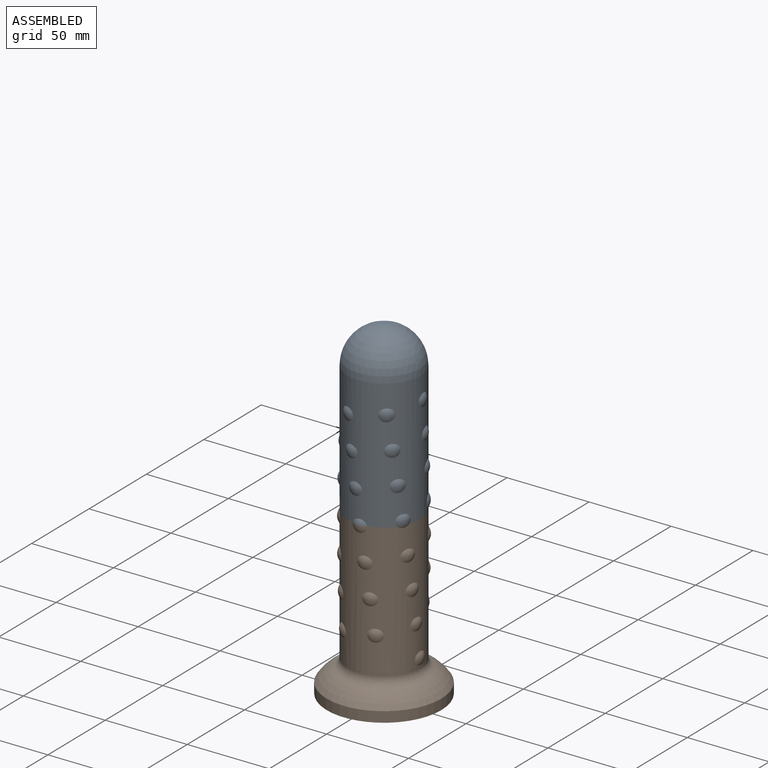
[diagram: assembled view]
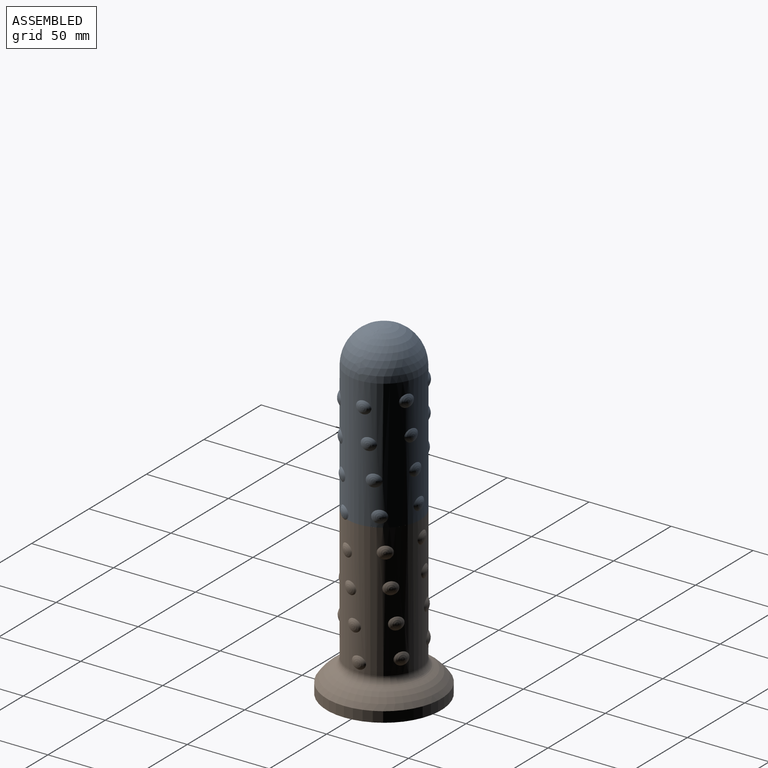
[diagram: assembled view, second angle]
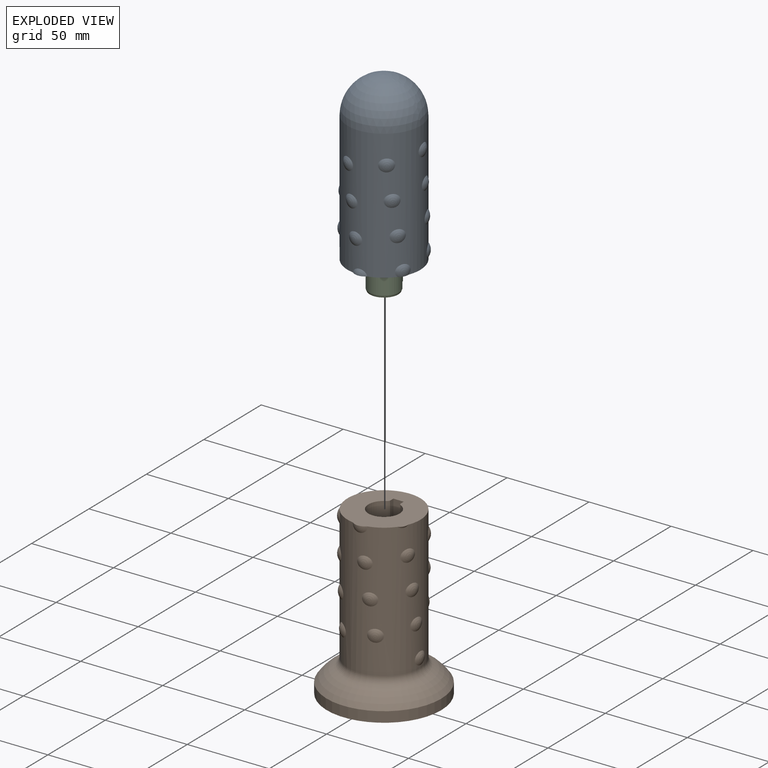
[diagram: exploded view]
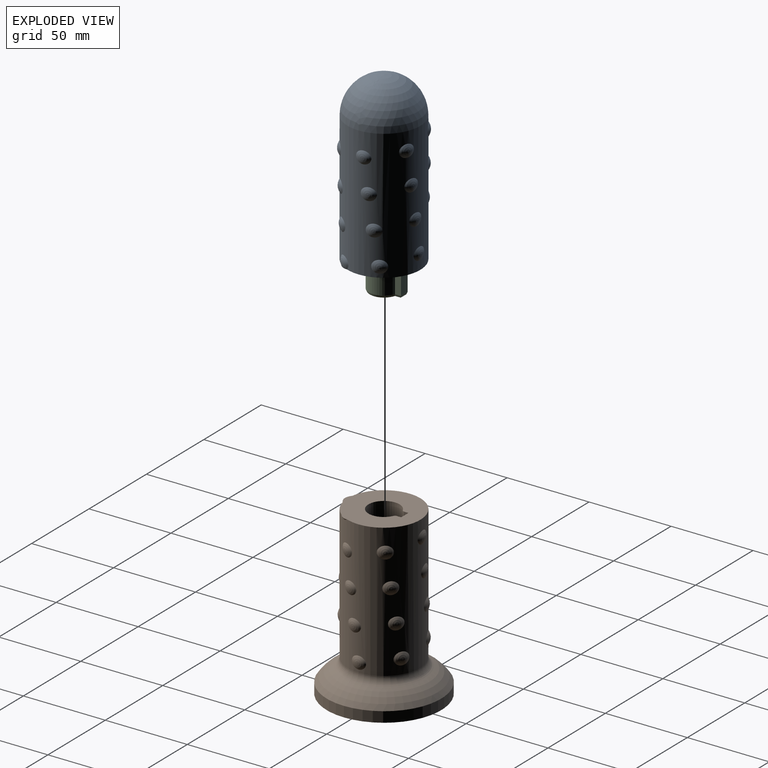
[diagram: exploded view, second angle]
ASSEMBLY  parts=3 mates=2
PART A: 40 faces, bbox 46.8x47x103.2 mm
  f0: sphere r=6.35mm, area 58.6mm2, adj f24
  f1: sphere r=6.35mm, area 58.6mm2, adj f24
  f2: sphere r=6.35mm, area 58.6mm2, adj f24
  f3: sphere r=6.35mm, area 58.6mm2, adj f24
  f4: sphere r=6.35mm, area 58.6mm2, adj f24
  f5: sphere r=6.35mm, area 58.6mm2, adj f24
  f6: sphere r=6.35mm, area 58.6mm2, adj f24
  f7: sphere r=6.35mm, area 58.6mm2, adj f24
  f8: sphere r=6.35mm, area 58.6mm2, adj f24
  f9: sphere r=6.35mm, area 58.6mm2, adj f24
  f10: sphere r=6.35mm, area 58.6mm2, adj f24
  f11: sphere r=6.35mm, area 58.6mm2, adj f24
  f12: sphere r=6.35mm, area 58.6mm2, adj f24
  f13: sphere r=6.35mm, area 58.6mm2, adj f24
  f14: sphere r=6.35mm, area 58.6mm2, adj f24
  f15: sphere r=6.35mm, area 58.6mm2, adj f24
  f16: sphere r=6.35mm, area 58.6mm2, adj f24
  f17: sphere r=6.35mm, area 58.6mm2, adj f24
  f18: sphere r=6.35mm, area 58.6mm2, adj f24
  f19: sphere r=6.35mm, area 58.6mm2, adj f24
  f20: sphere r=6.35mm, area 58.6mm2, adj f24
  f21: sphere r=6.35mm, area 58.6mm2, adj f24
  f22: sphere r=6.35mm, area 53.1mm2, adj f24,f26
  f23: sphere r=6.35mm, area 24mm2, adj f24,f26
  f24: cylinder r=22.23mm len=79.38mm, axis (0,0,1), area 9871.2mm2, adj f0,f1,f2,f3,f4,f5,f6,f7
  f25: sphere r=22.23mm, area 3103.6mm2, adj f24
  f26: plane 45.69x44.45mm, normal (0,0,-1), area 1258.9mm2, adj f22,f23,f24,f27,f28,f29,f30,f32
  f27: plane 13.08x2.99mm, normal (-1,0,0), area 39.1mm2, adj f26,f30,f32,f34
  f28: cylinder r=9.46mm len=18.92mm, axis (0,0,-1), area 674.8mm2, adj f26,f32,f33,f37
  f29: plane 13.08x2.99mm, normal (1,0,0), area 39.1mm2, adj f26,f30,f33,f38
  f30: plane 13.08x6.35mm, normal (0,-1,0), area 83.1mm2, adj f26,f27,f29,f36
  f31: plane 16.51x13.34mm, normal (0,0,-1), area 145.4mm2, adj f34,f35,f36,f37,f38,f39
  f32: plane 13.08x0.99mm, normal (-0.84,-0.55,0), area 15.4mm2, adj f26,f27,f28,f35
  f33: plane 13.08x0.99mm, normal (0.84,-0.55,0), area 15.4mm2, adj f26,f28,f29,f39
  f34: cylinder r=2.79mm len=3.82mm, axis (0,-1,0), area 10mm2, adj f27,f31,f35,f36
  f35: cylinder r=2.79mm len=3.97mm, axis (0.55,-0.84,0), area 7.9mm2, adj f31,f32,f34,f37
  f36: cylinder r=2.79mm len=6.35mm, axis (1,0,0), area 19mm2, adj f30,f31,f34,f38
  f37: torus R=6.67mm, axis (0,0,-1), area 204.6mm2, adj f28,f31,f35,f39
  f38: cylinder r=2.79mm len=3.82mm, axis (0,1,0), area 10mm2, adj f29,f31,f36,f39
  f39: cylinder r=2.79mm len=3.97mm, axis (0.55,0.84,0), area 7.9mm2, adj f31,f33,f37,f38
PART B: 38 faces, bbox 69.9x69.9x105.4 mm
  f0: sphere r=6.35mm, area 5.5mm2, adj f24,f30
  f1: sphere r=6.35mm, area 34.6mm2, adj f24,f30
  f2: sphere r=6.35mm, area 58.6mm2, adj f24
  f3: sphere r=6.35mm, area 58.6mm2, adj f24
  f4: sphere r=6.35mm, area 58.6mm2, adj f24
  f5: sphere r=6.35mm, area 58.6mm2, adj f24
  f6: sphere r=6.35mm, area 58.6mm2, adj f24
  f7: sphere r=6.35mm, area 58.6mm2, adj f24
  f8: sphere r=6.35mm, area 58.6mm2, adj f24
  f9: sphere r=6.35mm, area 58.6mm2, adj f24
  f10: sphere r=6.35mm, area 58.6mm2, adj f24
  f11: sphere r=6.35mm, area 58.6mm2, adj f24
  f12: sphere r=6.35mm, area 58.6mm2, adj f24
  f13: sphere r=6.35mm, area 58.6mm2, adj f24
  f14: sphere r=6.35mm, area 58.6mm2, adj f24
  f15: sphere r=6.35mm, area 58.6mm2, adj f24
  f16: sphere r=6.35mm, area 58.6mm2, adj f24
  f17: sphere r=6.35mm, area 58.6mm2, adj f24
  f18: sphere r=6.35mm, area 58.6mm2, adj f24
  f19: sphere r=6.35mm, area 58.6mm2, adj f24
  f20: sphere r=6.35mm, area 58.6mm2, adj f24
  f21: sphere r=6.35mm, area 58.6mm2, adj f24
  f22: sphere r=6.35mm, area 58.6mm2, adj f24
  f23: sphere r=6.35mm, area 58.6mm2, adj f24
  f24: cylinder r=22.23mm len=81.76mm, axis (0,0,1), area 10186mm2, adj f0,f1,f2,f3,f4,f5,f6,f7
  f25: plane 69.85x69.85mm, normal (0,0,-1), area 3832mm2, adj f26
  f26: cylinder r=34.92mm len=69.85mm, axis (0,0,1), area 1393.4mm2, adj f25,f27
  f27: torus R=13.54mm, axis (0,0,1), area 2579.1mm2, adj f26,f28
  f28: torus R=27.3mm, axis (0,0,1), area 816.1mm2, adj f24,f27
  f29: sphere r=6.35mm, area 58.6mm2, adj f24
  f30: plane 45.69x44.45mm, normal (0,0,1), area 1255.1mm2, adj f0,f1,f24,f31,f32,f33,f34,f36
  f31: cylinder r=9.53mm len=19.05mm, axis (0,0,1), area 660.2mm2, adj f30,f35,f36,f37
  f32: plane 12.7x2.99mm, normal (-1,0,0), area 37.9mm2, adj f30,f33,f35,f36
  f33: plane 12.7x6.35mm, normal (0,-1,0), area 80.6mm2, adj f30,f32,f34,f35
  f34: plane 12.7x2.99mm, normal (1,0,0), area 37.9mm2, adj f30,f33,f35,f37
  f35: plane 22.23x19.05mm, normal (0,0,1), area 306.8mm2, adj f31,f32,f33,f34,f36,f37
  f36: plane 12.7x0.99mm, normal (-0.84,-0.55,0), area 15mm2, adj f30,f31,f32,f35
  f37: plane 12.7x0.99mm, normal (0.84,-0.55,0), area 15mm2, adj f30,f31,f34,f35
PART C: 14 faces, bbox 18.4x21.6x24.9 mm
  f0: plane 22.35x5.84mm, normal (0,1,0), area 130.6mm2, adj f1,f3,f6,f10
  f1: plane 22.35x3.65mm, normal (1,0,0), area 81.6mm2, adj f0,f2,f9,f13
  f2: cylinder r=9.21mm len=22.35mm, axis (0,0,1), area 1160.2mm2, adj f1,f3,f7,f11
  f3: plane 22.35x3.65mm, normal (-1,0,0), area 81.6mm2, adj f0,f2,f8,f12
  f4: plane 20.57x17.4mm, normal (0,0,-1), area 253.6mm2, adj f6,f7,f8,f13
  f5: plane 20.57x17.4mm, normal (0,0,1), area 253.6mm2, adj f9,f10,f11,f12
  f6: plane 5.84x1.27mm, normal (0,0.93,-0.37), area 7.3mm2, adj f0,f4,f8,f13
  f7: cone r=8.7mm half-angle=21.8deg, axis (0,0,1), area 69.5mm2, adj f2,f4,f8,f13
  f8: plane 4.03x1.28mm, normal (-0.93,0,-0.37), area 4.9mm2, adj f3,f4,f6,f7
  f9: plane 4.03x1.28mm, normal (0.93,0,0.37), area 4.9mm2, adj f1,f5,f10,f11
  f10: plane 5.84x1.27mm, normal (0,0.93,0.37), area 7.3mm2, adj f0,f5,f9,f12
  f11: cone r=9.21mm half-angle=21.8deg, axis (0,0,-1), area 69.5mm2, adj f2,f5,f9,f12
  f12: plane 4.03x1.28mm, normal (-0.93,0,0.37), area 4.9mm2, adj f3,f5,f10,f11
  f13: plane 4.03x1.28mm, normal (0.93,0,-0.37), area 4.9mm2, adj f1,f4,f6,f7
PLACE A rot(axis=(0.04,0.03,-1),0deg) t=(0,0,0)mm
PLACE B at identity fixed
PLACE C t=(0,0,-0.25)mm
MATE fastened C.f11 <-> B.f31  axis (0,0,-1) through (0,0,88.9)mm
MATE fastened A.f26 <-> B.f30  axis (0,0,-1) through (0.05,-0.35,101.6)mm
